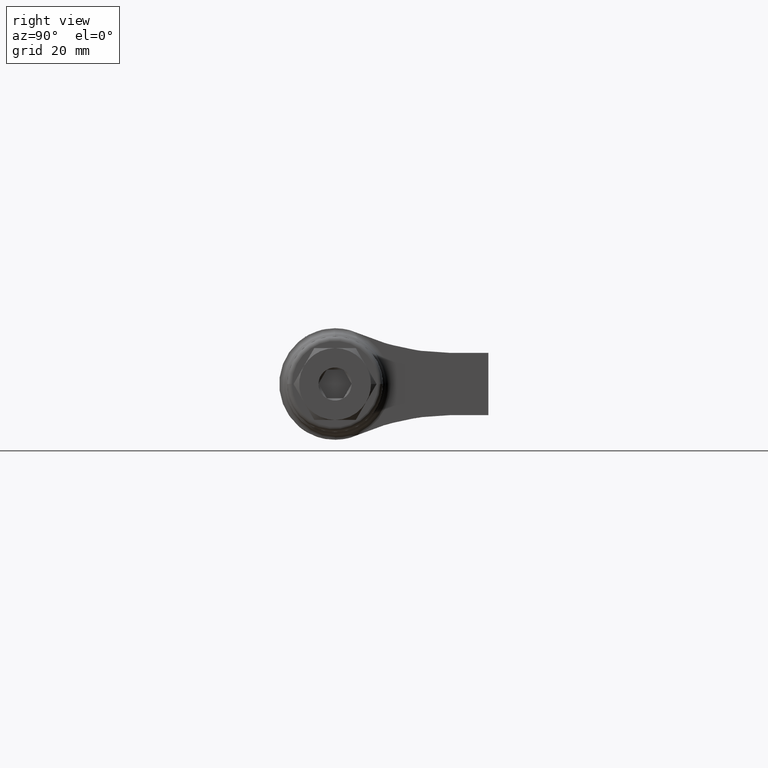
[diagram: clean part render]
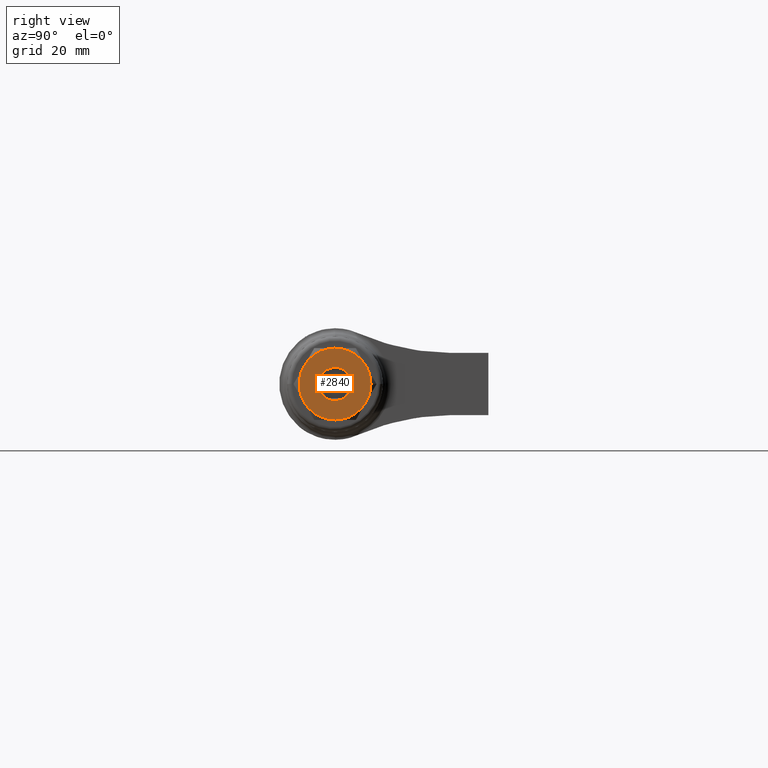
[diagram: same view with one face highlighted and labeled with its STEP entity id]
A machine part, right view. The second image highlights one B-rep face of the part: STEP entity #2840.
In plain terms, the highlighted planar face has unit normal (-1, -0, 0).
Its self-contained STEP definition (entity closure, byte-faithful):
#56 = DIRECTION ( 'NONE',  ( -1.000000000000000000, 0.0000000000000000000, 0.0000000000000000000 ) ) ;
#60 = CARTESIAN_POINT ( 'NONE',  ( 125.0000000000000000, -7.500000000000000000, 0.0000000000000000000 ) ) ;
#78 = DIRECTION ( 'NONE',  ( 0.0000000000000000000, 0.0000000000000000000, 1.000000000000000000 ) ) ;
#91 = AXIS2_PLACEMENT_3D ( 'NONE', #3306, #884, #78 ) ;
#120 = EDGE_CURVE ( 'NONE', #1558, #542, #2266, .T. ) ;
#130 = CARTESIAN_POINT ( 'NONE',  ( 125.0000000000000000, 0.0000000000000000000, 0.0000000000000000000 ) ) ;
#255 = CIRCLE ( 'NONE', #2049, 3.464101615137755300 ) ;
#295 = VERTEX_POINT ( 'NONE', #2570 ) ;
#298 = CARTESIAN_POINT ( 'NONE',  ( 125.0000000000000000, 3.750000000000000900, -6.495190528383289100 ) ) ;
#319 = VERTEX_POINT ( 'NONE', #1833 ) ;
#366 = DIRECTION ( 'NONE',  ( -1.000000000000000000, 0.0000000000000000000, 0.0000000000000000000 ) ) ;
#396 = CARTESIAN_POINT ( 'NONE',  ( 125.0000000000000000, 0.0000000000000000000, 0.0000000000000000000 ) ) ;
#410 = ORIENTED_EDGE ( 'NONE', *, *, #120, .F. ) ;
#415 = CARTESIAN_POINT ( 'NONE',  ( 125.0000000000000000, -2.168404344971008900E-016, 3.464101615137755300 ) ) ;
#423 = ORIENTED_EDGE ( 'NONE', *, *, #759, .T. ) ;
#437 = CARTESIAN_POINT ( 'NONE',  ( 125.0000000000000000, -3.000000000000000000, 1.732050807568878100 ) ) ;
#520 = VERTEX_POINT ( 'NONE', #415 ) ;
#542 = VERTEX_POINT ( 'NONE', #953 ) ;
#592 = EDGE_CURVE ( 'NONE', #648, #319, #4185, .T. ) ;
#628 = CARTESIAN_POINT ( 'NONE',  ( 125.0000000000000000, 0.0000000000000000000, 0.0000000000000000000 ) ) ;
#648 = VERTEX_POINT ( 'NONE', #1562 ) ;
#652 = ORIENTED_EDGE ( 'NONE', *, *, #2398, .T. ) ;
#705 = DIRECTION ( 'NONE',  ( 0.0000000000000000000, 0.0000000000000000000, 1.000000000000000000 ) ) ;
#752 = DIRECTION ( 'NONE',  ( -1.000000000000000000, 0.0000000000000000000, 0.0000000000000000000 ) ) ;
#759 = EDGE_CURVE ( 'NONE', #1984, #295, #3601, .T. ) ;
#884 = DIRECTION ( 'NONE',  ( -1.000000000000000000, 0.0000000000000000000, 0.0000000000000000000 ) ) ;
#917 = DIRECTION ( 'NONE',  ( 0.0000000000000000000, 0.0000000000000000000, -1.000000000000000000 ) ) ;
#953 = CARTESIAN_POINT ( 'NONE',  ( 125.0000000000000000, -3.750000000000000400, -6.495190528383290000 ) ) ;
#961 = EDGE_LOOP ( 'NONE', ( #3059, #1053, #3524, #3628, #652, #2686 ) ) ;
#979 = CARTESIAN_POINT ( 'NONE',  ( 125.0000000000000000, 3.000000000000000000, 1.732050807568878300 ) ) ;
#1042 = EDGE_CURVE ( 'NONE', #1572, #1920, #1203, .T. ) ;
#1053 = ORIENTED_EDGE ( 'NONE', *, *, #3948, .T. ) ;
#1058 = DIRECTION ( 'NONE',  ( -1.000000000000000000, 0.0000000000000000000, 0.0000000000000000000 ) ) ;
#1171 = ORIENTED_EDGE ( 'NONE', *, *, #2612, .F. ) ;
#1189 = DIRECTION ( 'NONE',  ( -1.000000000000000000, 0.0000000000000000000, 0.0000000000000000000 ) ) ;
#1203 = CIRCLE ( 'NONE', #1554, 7.499999999999999100 ) ;
#1270 = CIRCLE ( 'NONE', #3795, 7.499999999999999100 ) ;
#1285 = CIRCLE ( 'NONE', #2541, 3.464101615137755300 ) ;
#1293 = FACE_BOUND ( 'NONE', #961, .T. ) ;
#1339 = CARTESIAN_POINT ( 'NONE',  ( 125.0000000000000000, 0.0000000000000000000, 0.0000000000000000000 ) ) ;
#1374 = DIRECTION ( 'NONE',  ( 1.000000000000000000, 0.0000000000000000000, 0.0000000000000000000 ) ) ;
#1473 = DIRECTION ( 'NONE',  ( 0.0000000000000000000, 0.0000000000000000000, 1.000000000000000000 ) ) ;
#1477 = CARTESIAN_POINT ( 'NONE',  ( 125.0000000000000000, -3.750000000000000400, 6.495190528383290000 ) ) ;
#1520 = CIRCLE ( 'NONE', #91, 3.464101615137755300 ) ;
#1531 = DIRECTION ( 'NONE',  ( -1.000000000000000000, 0.0000000000000000000, 0.0000000000000000000 ) ) ;
#1545 = CARTESIAN_POINT ( 'NONE',  ( 125.0000000000000000, 0.0000000000000000000, 0.0000000000000000000 ) ) ;
#1554 = AXIS2_PLACEMENT_3D ( 'NONE', #3621, #3997, #4165 ) ;
#1558 = VERTEX_POINT ( 'NONE', #3444 ) ;
#1562 = CARTESIAN_POINT ( 'NONE',  ( 125.0000000000000000, 1.517883041479706200E-015, -3.464101615137755300 ) ) ;
#1572 = VERTEX_POINT ( 'NONE', #60 ) ;
#1647 = EDGE_CURVE ( 'NONE', #3614, #319, #255, .T. ) ;
#1675 = DIRECTION ( 'NONE',  ( -1.000000000000000000, 0.0000000000000000000, 0.0000000000000000000 ) ) ;
#1833 = CARTESIAN_POINT ( 'NONE',  ( 125.0000000000000000, 3.000000000000000000, -1.732050807568878300 ) ) ;
#1869 = AXIS2_PLACEMENT_3D ( 'NONE', #3439, #2939, #917 ) ;
#1873 = AXIS2_PLACEMENT_3D ( 'NONE', #130, #1531, #3080 ) ;
#1920 = VERTEX_POINT ( 'NONE', #1477 ) ;
#1984 = VERTEX_POINT ( 'NONE', #298 ) ;
#2007 = AXIS2_PLACEMENT_3D ( 'NONE', #3745, #752, #4256 ) ;
#2049 = AXIS2_PLACEMENT_3D ( 'NONE', #1339, #56, #4070 ) ;
#2076 = FACE_OUTER_BOUND ( 'NONE', #2175, .T. ) ;
#2083 = CARTESIAN_POINT ( 'NONE',  ( 125.0000000000000000, 0.0000000000000000000, 0.0000000000000000000 ) ) ;
#2175 = EDGE_LOOP ( 'NONE', ( #1171, #2952, #4417, #2328, #410, #2218, #423 ) ) ;
#2218 = ORIENTED_EDGE ( 'NONE', *, *, #3724, .F. ) ;
#2240 = DIRECTION ( 'NONE',  ( -1.000000000000000000, 0.0000000000000000000, 0.0000000000000000000 ) ) ;
#2263 = EDGE_CURVE ( 'NONE', #1920, #4302, #3188, .T. ) ;
#2266 = CIRCLE ( 'NONE', #4080, 7.499999999999999100 ) ;
#2326 = EDGE_CURVE ( 'NONE', #2388, #3125, #3314, .T. ) ;
#2328 = ORIENTED_EDGE ( 'NONE', *, *, #3459, .F. ) ;
#2364 = AXIS2_PLACEMENT_3D ( 'NONE', #2083, #1058, #3084 ) ;
#2387 = DIRECTION ( 'NONE',  ( 0.0000000000000000000, 0.0000000000000000000, 1.000000000000000000 ) ) ;
#2388 = VERTEX_POINT ( 'NONE', #2432 ) ;
#2398 = EDGE_CURVE ( 'NONE', #648, #2388, #1285, .T. ) ;
#2432 = CARTESIAN_POINT ( 'NONE',  ( 125.0000000000000000, -3.000000000000000000, -1.732050807568878100 ) ) ;
#2459 = DIRECTION ( 'NONE',  ( -1.000000000000000000, 0.0000000000000000000, 0.0000000000000000000 ) ) ;
#2527 = CARTESIAN_POINT ( 'NONE',  ( 125.0000000000000000, 0.0000000000000000000, 0.0000000000000000000 ) ) ;
#2541 = AXIS2_PLACEMENT_3D ( 'NONE', #1545, #1189, #4249 ) ;
#2570 = CARTESIAN_POINT ( 'NONE',  ( 125.0000000000000000, 7.500000000000000000, 0.0000000000000000000 ) ) ;
#2580 = AXIS2_PLACEMENT_3D ( 'NONE', #4031, #366, #705 ) ;
#2612 = EDGE_CURVE ( 'NONE', #4302, #295, #3027, .T. ) ;
#2686 = ORIENTED_EDGE ( 'NONE', *, *, #2326, .T. ) ;
#2840 = ADVANCED_FACE ( 'NONE', ( #1293, #2076 ), #3702, .F. ) ;
#2936 = EDGE_CURVE ( 'NONE', #3125, #520, #3584, .T. ) ;
#2939 = DIRECTION ( 'NONE',  ( 1.000000000000000000, 0.0000000000000000000, 0.0000000000000000000 ) ) ;
#2952 = ORIENTED_EDGE ( 'NONE', *, *, #2263, .F. ) ;
#2969 = DIRECTION ( 'NONE',  ( 0.0000000000000000000, 0.0000000000000000000, 1.000000000000000000 ) ) ;
#3027 = CIRCLE ( 'NONE', #2007, 7.499999999999999100 ) ;
#3059 = ORIENTED_EDGE ( 'NONE', *, *, #2936, .T. ) ;
#3080 = DIRECTION ( 'NONE',  ( 0.0000000000000000000, 0.0000000000000000000, 1.000000000000000000 ) ) ;
#3084 = DIRECTION ( 'NONE',  ( 0.0000000000000000000, 0.0000000000000000000, 1.000000000000000000 ) ) ;
#3125 = VERTEX_POINT ( 'NONE', #437 ) ;
#3188 = CIRCLE ( 'NONE', #4245, 7.499999999999999100 ) ;
#3225 = AXIS2_PLACEMENT_3D ( 'NONE', #4068, #1374, #3414 ) ;
#3306 = CARTESIAN_POINT ( 'NONE',  ( 125.0000000000000000, 0.0000000000000000000, 0.0000000000000000000 ) ) ;
#3311 = CIRCLE ( 'NONE', #2580, 7.499999999999999100 ) ;
#3314 = CIRCLE ( 'NONE', #1873, 3.464101615137755300 ) ;
#3354 = DIRECTION ( 'NONE',  ( -1.000000000000000000, 0.0000000000000000000, 0.0000000000000000000 ) ) ;
#3414 = DIRECTION ( 'NONE',  ( 0.0000000000000000000, 0.0000000000000000000, -1.000000000000000000 ) ) ;
#3439 = CARTESIAN_POINT ( 'NONE',  ( 125.0000000000000000, 0.0000000000000000000, 0.0000000000000000000 ) ) ;
#3444 = CARTESIAN_POINT ( 'NONE',  ( 125.0000000000000000, 0.0000000000000000000, -7.499999999999999100 ) ) ;
#3459 = EDGE_CURVE ( 'NONE', #542, #1572, #1270, .T. ) ;
#3524 = ORIENTED_EDGE ( 'NONE', *, *, #1647, .T. ) ;
#3584 = CIRCLE ( 'NONE', #4214, 3.464101615137755300 ) ;
#3596 = CARTESIAN_POINT ( 'NONE',  ( 125.0000000000000000, 3.750000000000000400, 6.495190528383290000 ) ) ;
#3601 = CIRCLE ( 'NONE', #3225, 7.500000000000000000 ) ;
#3614 = VERTEX_POINT ( 'NONE', #979 ) ;
#3621 = CARTESIAN_POINT ( 'NONE',  ( 125.0000000000000000, 0.0000000000000000000, 0.0000000000000000000 ) ) ;
#3628 = ORIENTED_EDGE ( 'NONE', *, *, #592, .F. ) ;
#3702 = PLANE ( 'NONE',  #2364 ) ;
#3711 = CARTESIAN_POINT ( 'NONE',  ( 125.0000000000000000, 0.0000000000000000000, 0.0000000000000000000 ) ) ;
#3724 = EDGE_CURVE ( 'NONE', #1984, #1558, #3311, .T. ) ;
#3745 = CARTESIAN_POINT ( 'NONE',  ( 125.0000000000000000, 0.0000000000000000000, 0.0000000000000000000 ) ) ;
#3795 = AXIS2_PLACEMENT_3D ( 'NONE', #3711, #1675, #4056 ) ;
#3948 = EDGE_CURVE ( 'NONE', #520, #3614, #1520, .T. ) ;
#3997 = DIRECTION ( 'NONE',  ( -1.000000000000000000, 0.0000000000000000000, 0.0000000000000000000 ) ) ;
#4031 = CARTESIAN_POINT ( 'NONE',  ( 125.0000000000000000, 0.0000000000000000000, 0.0000000000000000000 ) ) ;
#4056 = DIRECTION ( 'NONE',  ( 0.0000000000000000000, 0.0000000000000000000, 1.000000000000000000 ) ) ;
#4068 = CARTESIAN_POINT ( 'NONE',  ( 125.0000000000000000, 0.0000000000000000000, 0.0000000000000000000 ) ) ;
#4070 = DIRECTION ( 'NONE',  ( 0.0000000000000000000, 0.0000000000000000000, 1.000000000000000000 ) ) ;
#4080 = AXIS2_PLACEMENT_3D ( 'NONE', #396, #2459, #1473 ) ;
#4165 = DIRECTION ( 'NONE',  ( 0.0000000000000000000, 0.0000000000000000000, 1.000000000000000000 ) ) ;
#4185 = CIRCLE ( 'NONE', #1869, 3.464101615137755300 ) ;
#4214 = AXIS2_PLACEMENT_3D ( 'NONE', #628, #3354, #2969 ) ;
#4245 = AXIS2_PLACEMENT_3D ( 'NONE', #2527, #2240, #2387 ) ;
#4249 = DIRECTION ( 'NONE',  ( 0.0000000000000000000, 0.0000000000000000000, 1.000000000000000000 ) ) ;
#4256 = DIRECTION ( 'NONE',  ( 0.0000000000000000000, 0.0000000000000000000, 1.000000000000000000 ) ) ;
#4302 = VERTEX_POINT ( 'NONE', #3596 ) ;
#4417 = ORIENTED_EDGE ( 'NONE', *, *, #1042, .F. ) ;